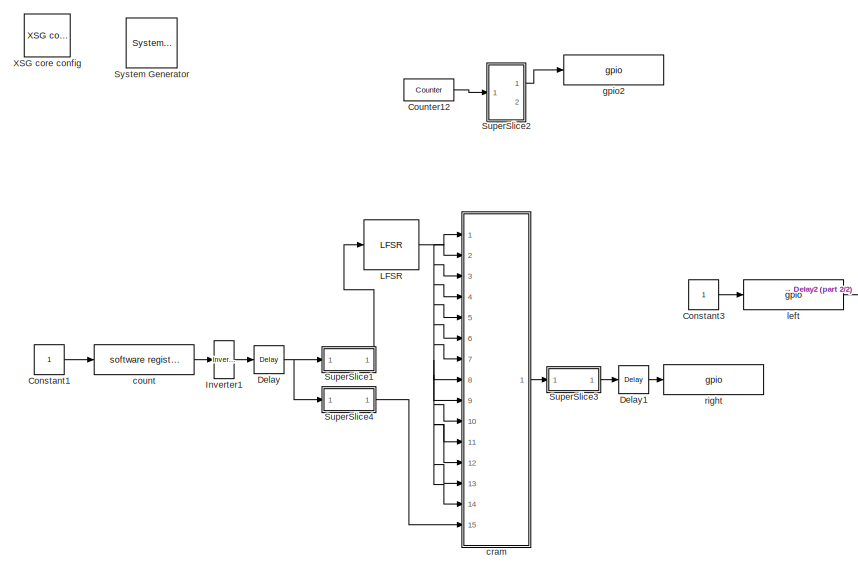
[diagram: root canvas - part 1/2, left side, full height]
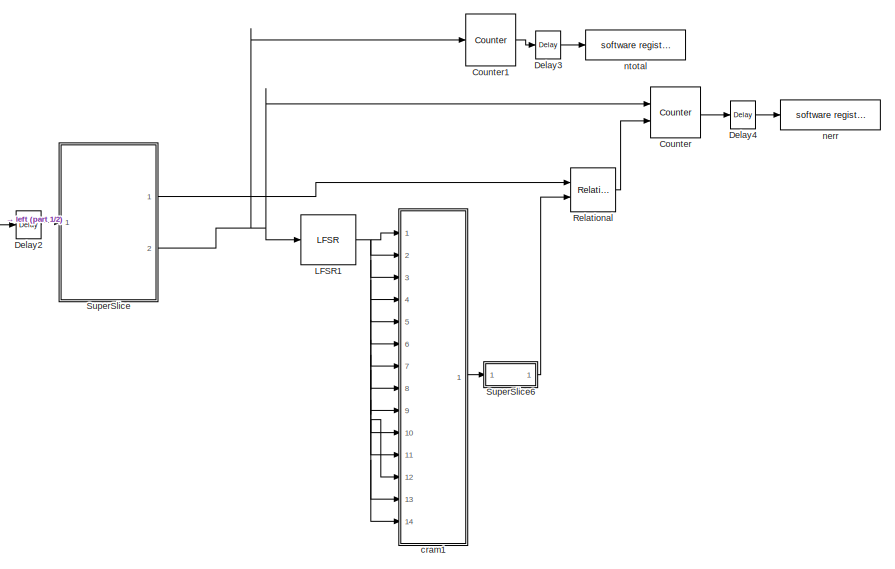
[diagram: root canvas - part 2/2, right side, full height]
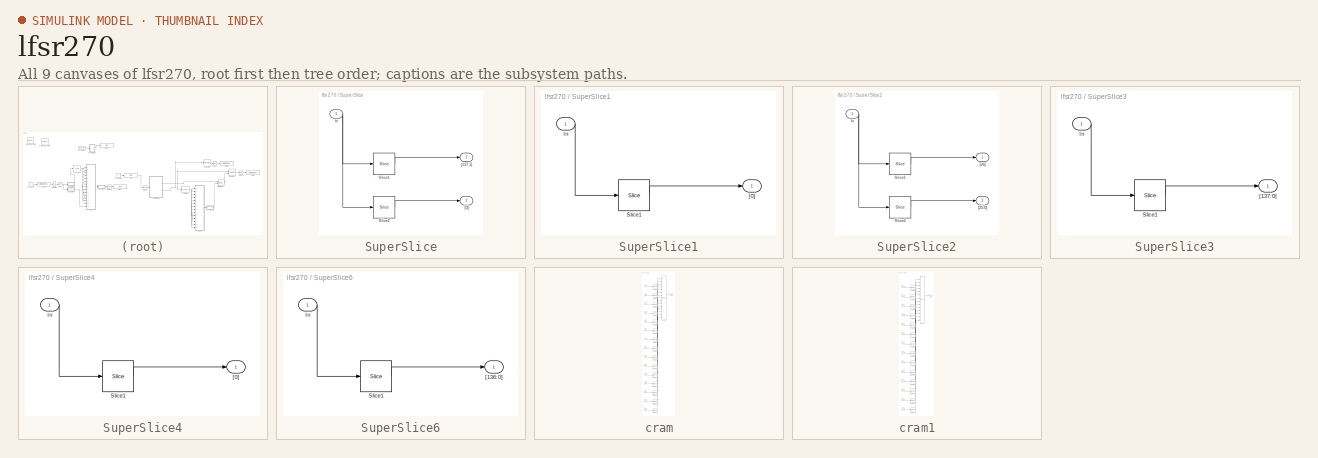
[diagram: thumbnail index - all 9 canvases of the model, root first then tree order]
MODEL lfsr270
KIND model
BLOCK [Reference]  System Generator  REF=xbsIndex_r3/ System Generator
  AttributesFormatString = System\\nGenerator
  Ports = []
  ShowPortLabels = on
  SourceBlock = xbsIndex_r3/ System Generator
  SourceType = Xilinx System Generator
  Tag = genX
  UserData = DataTag0
  UserDataPersistent = on
  core_generation = According to Block Masks
  dbl_ovrd = According to Block Masks
  deprecated_control = off
  directory = ./lfsr270/sysgen
  eval_field = 0
  incr_netlist = off
  package = ff1704
  part = xc2vp70
  run_coregen = off
  simulink_period = 1
  speed = -7
  synthesis_tool = XST
  sysclk_period = 3.9063
  testbench = off
  trim_vbits = Everywhere in SubSystem
  xilinxfamily = Virtex2P
BLOCK [Constant] Constant1
BLOCK [Constant] Constant3
BLOCK [Reference] Counter  REF=xbsIndex_r3/Counter
  Ports = [2, 1]
  SourceBlock = xbsIndex_r3/Counter
  SourceType = Xilinx Counter Block
  arith_type = Unsigned
  bin_pt = 0
  cnt_by_val = 1
  cnt_to = Inf
  cnt_type = Free Running
  dbl_ovrd = off
  en = on
  explicit_period = off
  gen_core = off
  load_pin = off
  n_bits = 32
  operation = Up
  period = 1
  rst = on
  show_param = on
  start_count = 0
  use_rpm = on
  xl_area = [0, 0, 0, 0, 0, 0, 0]
  xl_use_area = off
BLOCK [Reference] Counter1  REF=xbsIndex_r3/Counter
  Ports = [1, 1]
  SourceBlock = xbsIndex_r3/Counter
  SourceType = Xilinx Counter Block
  arith_type = Unsigned
  bin_pt = 0
  cnt_by_val = 1
  cnt_to = Inf
  cnt_type = Free Running
  dbl_ovrd = off
  en = off
  explicit_period = off
  gen_core = off
  load_pin = off
  n_bits = 32
  operation = Up
  period = 1
  rst = on
  show_param = on
  start_count = 0
  use_rpm = on
  xl_area = [0, 0, 0, 0, 0, 0, 0]
  xl_use_area = off
BLOCK [Reference] Counter12  REF=xbsIndex_r3/Counter
  Ports = [0, 1]
  SourceBlock = xbsIndex_r3/Counter
  SourceType = Xilinx Counter Block
  arith_type = Unsigned
  bin_pt = 0
  cnt_by_val = 1
  cnt_to = Inf
  cnt_type = Free Running
  dbl_ovrd = off
  en = off
  explicit_period = off
  gen_core = off
  load_pin = off
  n_bits = 27
  operation = Up
  period = 1
  rst = off
  show_param = off
  start_count = 0
  use_rpm = on
  xl_area = [0, 0, 0, 0, 0, 0, 0]
  xl_use_area = off
BLOCK [Reference] Delay  REF=xbsIndex_r3/Delay
  Ports = [1, 1]
  SourceBlock = xbsIndex_r3/Delay
  SourceType = Xilinx Delay Block
  accept_only_valid = off
  dbl_ovrd = off
  en = off
  explicit_period = off
  init_zero = on
  latency = 1
  period = 1
  reg_retiming = on
  show_param = off
  xl_area = [0, 0, 0, 0, 0, 0, 0]
  xl_use_area = off
BLOCK [Reference] Delay1  REF=xbsIndex_r3/Delay
  Ports = [1, 1]
  SourceBlock = xbsIndex_r3/Delay
  SourceType = Xilinx Delay Block
  accept_only_valid = off
  dbl_ovrd = off
  en = off
  explicit_period = off
  init_zero = on
  latency = 2
  period = 1
  reg_retiming = on
  show_param = off
  xl_area = [0, 0, 0, 0, 0, 0, 0]
  xl_use_area = off
BLOCK [Reference] Delay2  REF=xbsIndex_r3/Delay
  Ports = [1, 1]
  SourceBlock = xbsIndex_r3/Delay
  SourceType = Xilinx Delay Block
  accept_only_valid = off
  dbl_ovrd = off
  en = off
  explicit_period = off
  init_zero = on
  latency = 2
  period = 1
  reg_retiming = on
  show_param = off
  xl_area = [0, 0, 0, 0, 0, 0, 0]
  xl_use_area = off
BLOCK [Reference] Delay3  REF=xbsIndex_r3/Delay
  Ports = [1, 1]
  SourceBlock = xbsIndex_r3/Delay
  SourceType = Xilinx Delay Block
  accept_only_valid = off
  dbl_ovrd = off
  en = off
  explicit_period = off
  init_zero = on
  latency = 2
  period = 1
  reg_retiming = on
  show_param = off
  xl_area = [0, 0, 0, 0, 0, 0, 0]
  xl_use_area = off
BLOCK [Reference] Delay4  REF=xbsIndex_r3/Delay
  Ports = [1, 1]
  SourceBlock = xbsIndex_r3/Delay
  SourceType = Xilinx Delay Block
  accept_only_valid = off
  dbl_ovrd = off
  en = off
  explicit_period = off
  init_zero = on
  latency = 2
  period = 1
  reg_retiming = on
  show_param = off
  xl_area = [0, 0, 0, 0, 0, 0, 0]
  xl_use_area = off
BLOCK [Reference] Inverter1  REF=xbsIndex_r3/Inverter
  Ports = [1, 1]
  SourceBlock = xbsIndex_r3/Inverter
  SourceType = Xilinx Inverter
  dbl_ovrd = off
  en = off
  explicit_period = off
  latency = 0
  period = 1
  show_param = off
  xl_area = [0, 0, 0, 0, 0, 0, 0]
  xl_use_area = off
BLOCK [Reference] LFSR  REF=xbsIndex_r3/LFSR
  Ports = [1, 1]
  SourceBlock = xbsIndex_r3/LFSR
  SourceType = Xilinx Linear Feedback Shift Register
  arith_type = Unsigned
  bin_pt = 0
  dbl_ovrd = off
  en = off
  explicit_period = on
  gate_type = XOR
  gen_core = off
  input_type = off
  lfsr_type = Fibonacci
  n_bits = 10
  output_type = on
  period = 1
  polynomial = '9'
  reloadable_seed = off
  rst = on
  rst_value = '3F'
  show_param = on
  useSRL16s = off
  use_rpm = on
  xl_area = [0, 0, 0, 0, 0, 0, 0]
  xl_use_area = off
BLOCK [Reference] LFSR1  REF=xbsIndex_r3/LFSR
  Ports = [1, 1]
  SourceBlock = xbsIndex_r3/LFSR
  SourceType = Xilinx Linear Feedback Shift Register
  arith_type = Unsigned
  bin_pt = 0
  dbl_ovrd = off
  en = off
  explicit_period = on
  gate_type = XOR
  gen_core = off
  input_type = off
  lfsr_type = Fibonacci
  n_bits = 10
  output_type = on
  period = 1
  polynomial = '9'
  reloadable_seed = off
  rst = on
  rst_value = '3F'
  show_param = on
  useSRL16s = off
  use_rpm = on
  xl_area = [0, 0, 0, 0, 0, 0, 0]
  xl_use_area = off
BLOCK [Reference] Relational  REF=xbsIndex_r3/Relational
  Ports = [2, 1]
  SourceBlock = xbsIndex_r3/Relational
  SourceType = Xilinx Relational Block
  dbl_ovrd = off
  en = off
  explicit_period = off
  latency = 8
  mode = a!=b
  period = 1
  show_param = on
  xl_area = [0, 0, 0, 0, 0, 0, 0]
  xl_use_area = off
BLOCK [SubSystem] SuperSlice
  AncestorBlock = gavrt_library/SuperSlice
  MaskDescription = Slices the input word into consecutive outputs of arbitrary width.\nSlice pattern should be a vector with each entry representing the width of that particular slice. The first entry is the MSB slice and the last is the LSB slice.\nIf a slice is given width -1, that slice will have a boolean output.\nEx: -1*ones(1,32)  -- Slice a 32 bit word into seperate boolean flags\n[16, 8, -1*ones(1,8)] -- Sli...<+71ch>  <repeated x6 — deduplicated; at blocks: SuperSlice, SuperSlice1, SuperSlice2, SuperSlice3, SuperSlice4, SuperSlice6>
  MaskEnableString = on
  MaskIconFrame = on
  MaskIconOpaque = on
  MaskIconRotate = none
  MaskIconUnits = autoscale
  MaskInitialization = superslice_init(gcb, 'slices', slices);
  MaskPromptString = Slice pattern
  MaskStyleString = edit
  MaskToolTipString = on
  MaskTunableValueString = off
  MaskType = superslice
  MaskValueString = [137,-1]
  MaskVariables = slices=&1;
  MaskVisibilityString = on
  MinAlgLoopOccurrences = off
  Ports = [1, 2]
  RTWSystemCode = Auto
  TreatAsAtomicUnit = off
  UserData = DataTag1
  UserDataPersistent = on
BLOCK [Inport] SuperSlice/In
  IconDisplay = Port number
  LatchInput = off
  Port = 1
BLOCK [Reference] SuperSlice/Slice1  REF=xbsIndex_r3/Slice
  Ports = [1, 1]
  SourceBlock = xbsIndex_r3/Slice
  SourceType = Xilinx Slice Block
  base0 = LSB of Input
  base1 = MSB of Input
  bit0 = 1
  bit1 = -3
  boolean_output = off
  dbl_ovrd = off
  explicit_period = off
  mode = Lower Bit Location + Width
  nbits = 137
  period = 1
BLOCK [Reference] SuperSlice/Slice2  REF=xbsIndex_r3/Slice
  Ports = [1, 1]
  SourceBlock = xbsIndex_r3/Slice
  SourceType = Xilinx Slice Block
  base0 = LSB of Input
  base1 = MSB of Input
  bit0 = 0
  bit1 = -2
  boolean_output = on
  dbl_ovrd = off
  explicit_period = off
  mode = Lower Bit Location + Width
  nbits = 1
  period = 1
BLOCK [Outport] SuperSlice/[0]
  BusOutputAsStruct = off
  IconDisplay = Port number
  Port = 2
BLOCK [Outport] SuperSlice/[137:1]
  BusOutputAsStruct = off
  IconDisplay = Port number
BLOCK [SubSystem] SuperSlice1
  AncestorBlock = gavrt_library/SuperSlice
  MaskEnableString = on
  MaskIconFrame = on
  MaskIconOpaque = on
  MaskIconRotate = none
  MaskIconUnits = autoscale
  MaskInitialization = superslice_init(gcb, 'slices', slices);
  MaskPromptString = Slice pattern
  MaskStyleString = edit
  MaskToolTipString = on
  MaskTunableValueString = off
  MaskType = superslice
  MaskValueString = -1
  MaskVariables = slices=&1;
  MaskVisibilityString = on
  MinAlgLoopOccurrences = off
  Ports = [1, 1]
  RTWSystemCode = Auto
  TreatAsAtomicUnit = off
  UserData = DataTag2
  UserDataPersistent = on
BLOCK [Inport] SuperSlice1/In
  IconDisplay = Port number
  LatchInput = off
  Port = 1
BLOCK [Reference] SuperSlice1/Slice1  REF=xbsIndex_r3/Slice
  Ports = [1, 1]
  SourceBlock = xbsIndex_r3/Slice
  SourceType = Xilinx Slice Block
  base0 = LSB of Input
  base1 = MSB of Input
  bit0 = 0
  bit1 = -3
  boolean_output = on
  dbl_ovrd = off
  explicit_period = off
  mode = Lower Bit Location + Width
  nbits = 1
  period = 1
BLOCK [Outport] SuperSlice1/[0]
  BusOutputAsStruct = off
  IconDisplay = Port number
BLOCK [SubSystem] SuperSlice2
  AncestorBlock = gavrt_library/SuperSlice
  MaskEnableString = on
  MaskIconFrame = on
  MaskIconOpaque = on
  MaskIconRotate = none
  MaskIconUnits = autoscale
  MaskInitialization = superslice_init(gcb, 'slices', slices);
  MaskPromptString = Slice pattern
  MaskStyleString = edit
  MaskToolTipString = on
  MaskTunableValueString = off
  MaskType = superslice
  MaskValueString = [-1 26]
  MaskVariables = slices=&1;
  MaskVisibilityString = on
  MinAlgLoopOccurrences = off
  Ports = [1, 2]
  RTWSystemCode = Auto
  TreatAsAtomicUnit = off
  UserData = DataTag3
  UserDataPersistent = on
BLOCK [Inport] SuperSlice2/In
  IconDisplay = Port number
  LatchInput = off
  Port = 1
BLOCK [Reference] SuperSlice2/Slice1  REF=xbsIndex_r3/Slice
  Ports = [1, 1]
  SourceBlock = xbsIndex_r3/Slice
  SourceType = Xilinx Slice Block
  base0 = LSB of Input
  base1 = MSB of Input
  bit0 = 26
  bit1 = -3
  boolean_output = on
  dbl_ovrd = off
  explicit_period = off
  mode = Lower Bit Location + Width
  nbits = 1
  period = 1
BLOCK [Reference] SuperSlice2/Slice2  REF=xbsIndex_r3/Slice
  Ports = [1, 1]
  SourceBlock = xbsIndex_r3/Slice
  SourceType = Xilinx Slice Block
  base0 = LSB of Input
  base1 = MSB of Input
  bit0 = 0
  bit1 = 0
  boolean_output = off
  dbl_ovrd = off
  explicit_period = off
  mode = Lower Bit Location + Width
  nbits = 26
  period = 1
BLOCK [Outport] SuperSlice2/[25:0]
  BusOutputAsStruct = off
  IconDisplay = Port number
  Port = 2
BLOCK [Outport] SuperSlice2/[26]
  BusOutputAsStruct = off
  IconDisplay = Port number
BLOCK [SubSystem] SuperSlice3
  AncestorBlock = gavrt_library/SuperSlice
  MaskEnableString = on
  MaskIconFrame = on
  MaskIconOpaque = on
  MaskIconRotate = none
  MaskIconUnits = autoscale
  MaskInitialization = superslice_init(gcb, 'slices', slices);
  MaskPromptString = Slice pattern
  MaskStyleString = edit
  MaskToolTipString = on
  MaskTunableValueString = off
  MaskType = superslice
  MaskValueString = 138
  MaskVariables = slices=&1;
  MaskVisibilityString = on
  MinAlgLoopOccurrences = off
  Ports = [1, 1]
  RTWSystemCode = Auto
  TreatAsAtomicUnit = off
  UserData = DataTag4
  UserDataPersistent = on
BLOCK [Inport] SuperSlice3/In
  IconDisplay = Port number
  LatchInput = off
  Port = 1
BLOCK [Reference] SuperSlice3/Slice1  REF=xbsIndex_r3/Slice
  Ports = [1, 1]
  SourceBlock = xbsIndex_r3/Slice
  SourceType = Xilinx Slice Block
  base0 = LSB of Input
  base1 = MSB of Input
  bit0 = 0
  bit1 = -3
  boolean_output = off
  dbl_ovrd = off
  explicit_period = off
  mode = Lower Bit Location + Width
  nbits = 138
  period = 1
BLOCK [Outport] SuperSlice3/[137:0]
  BusOutputAsStruct = off
  IconDisplay = Port number
BLOCK [SubSystem] SuperSlice4
  AncestorBlock = gavrt_library/SuperSlice
  MaskEnableString = on
  MaskIconFrame = on
  MaskIconOpaque = on
  MaskIconRotate = none
  MaskIconUnits = autoscale
  MaskInitialization = superslice_init(gcb, 'slices', slices);
  MaskPromptString = Slice pattern
  MaskStyleString = edit
  MaskToolTipString = on
  MaskTunableValueString = off
  MaskType = superslice
  MaskValueString = 1
  MaskVariables = slices=&1;
  MaskVisibilityString = on
  MinAlgLoopOccurrences = off
  Ports = [1, 1]
  RTWSystemCode = Auto
  TreatAsAtomicUnit = off
  UserData = DataTag5
  UserDataPersistent = on
BLOCK [Inport] SuperSlice4/In
  IconDisplay = Port number
  LatchInput = off
  Port = 1
BLOCK [Reference] SuperSlice4/Slice1  REF=xbsIndex_r3/Slice
  Ports = [1, 1]
  SourceBlock = xbsIndex_r3/Slice
  SourceType = Xilinx Slice Block
  base0 = LSB of Input
  base1 = MSB of Input
  bit0 = 0
  bit1 = -3
  boolean_output = off
  dbl_ovrd = off
  explicit_period = off
  mode = Lower Bit Location + Width
  nbits = 1
  period = 1
BLOCK [Outport] SuperSlice4/[0]
  BusOutputAsStruct = off
  IconDisplay = Port number
BLOCK [SubSystem] SuperSlice6
  AncestorBlock = gavrt_library/SuperSlice
  MaskEnableString = on
  MaskIconFrame = on
  MaskIconOpaque = on
  MaskIconRotate = none
  MaskIconUnits = autoscale
  MaskInitialization = superslice_init(gcb, 'slices', slices);
  MaskPromptString = Slice pattern
  MaskStyleString = edit
  MaskToolTipString = on
  MaskTunableValueString = off
  MaskType = superslice
  MaskValueString = 137
  MaskVariables = slices=&1;
  MaskVisibilityString = on
  MinAlgLoopOccurrences = off
  Ports = [1, 1]
  RTWSystemCode = Auto
  TreatAsAtomicUnit = off
  UserData = DataTag6
  UserDataPersistent = on
BLOCK [Inport] SuperSlice6/In
  IconDisplay = Port number
  LatchInput = off
  Port = 1
BLOCK [Reference] SuperSlice6/Slice1  REF=xbsIndex_r3/Slice
  Ports = [1, 1]
  SourceBlock = xbsIndex_r3/Slice
  SourceType = Xilinx Slice Block
  base0 = LSB of Input
  base1 = MSB of Input
  bit0 = 0
  bit1 = -3
  boolean_output = off
  dbl_ovrd = off
  explicit_period = off
  mode = Lower Bit Location + Width
  nbits = 137
  period = 1
BLOCK [Outport] SuperSlice6/[136:0]
  BusOutputAsStruct = off
  IconDisplay = Port number
BLOCK [Reference] XSG core config  REF=xps_library/XSG core config  (lib defined in mdl_00b5cec29cd0, mdl_02ab6ecaa3d1, +5 more)
  Ports = []
  ShowPortLabels = on
  SourceBlock = xps_library/XSG core config
  SourceType = xsg core config
  Tag = xps:xsg
  clk_rate = 256
  clk_src = sys_clk2x
  gpio_clk_bit_index = 0
  gpio_clk_io_group = iBOB:sma
  hw_sys = BEE2_usr
  ibob_linux = off
  mpc_type = powerpc405
  sample_period = 1
  synthesis_tool = XST
BLOCK [Reference] count  REF=xps_library/software register  (lib defined in mdl_00b5cec29cd0, mdl_02ab6ecaa3d1, +5 more)
  Ports = [1, 1]
  ShowPortLabels = on
  SourceBlock = xps_library/software register
  Tag = xps:sw_reg
  arith_type = Unsigned
  bin_pt = 0
  bitwidth = 32
  gw_name = lfsr270_count_user_data_out
  io_dir = From Processor
  sample_period = 1
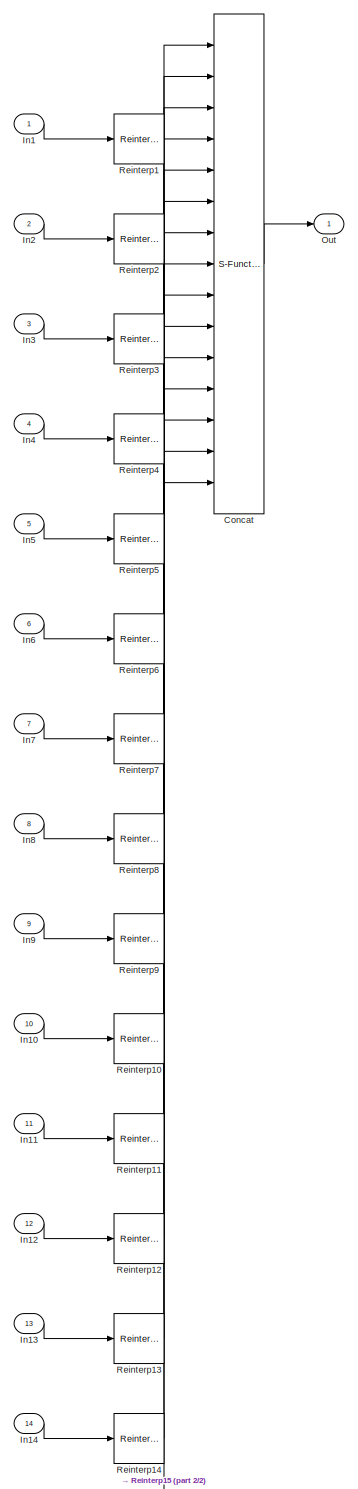
[diagram: cram - part 1/2, most of the canvas]
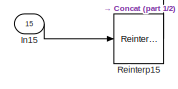
[diagram: cram - part 2/2, bottom left region]
BLOCK [SubSystem] cram
  AncestorBlock = gavrt_library/cram
  MaskDescription = Concatenates inputs together after forcing binary point to zero.
  MaskEnableString = on
  MaskIconFrame = on
  MaskIconOpaque = on
  MaskIconRotate = none
  MaskIconUnits = autoscale
  MaskInitialization = cram_init(gcb, ...\n    'num_slice', num_slice);
  MaskPromptString = Number of slices
  MaskSelfModifiable = on
  MaskStyleString = edit
  MaskToolTipString = on
  MaskTunableValueString = on
  MaskType = cram
  MaskValueString = 15
  MaskVariables = num_slice=@1;
  MaskVisibilityString = on
  MinAlgLoopOccurrences = off
  Ports = [15, 1]
  RTWSystemCode = Auto
  TreatAsAtomicUnit = off
  UserData = DataTag7
  UserDataPersistent = on
BLOCK [S-Function] cram/Concat
  AncestorBlock = xbsIndex_r3/Concat
  FunctionName = xlconcat
  MaskCallbackString = |xlMagicCallback||
  MaskDescription = Concatenates two or more inputs.  Inputs must be unsigned with binary point at zero.
  MaskDisplay = patch([0 iWidth iWidth 0],[0 0 iHeight iHeight] , bg);\npatch(logoX,logoY, fg);\nport_label('input',1,'hi');\nport_label('input',num_inputs+1,'lo');\nport_label('output',1,'cat');\n;plot([0 0 iWidth iWidth 0], [0 iHeight iHeight 0 0]);\n
  MaskEnableString = on,on,on,on
  MaskHelp = eval('xlWeb(xlhtmldoclink(''Concat''))');
  MaskIconFrame = off
  MaskIconOpaque = off
  MaskIconRotate = none
  MaskIconUnits = autoscale
  MaskInitialization = [designRoot, family, part, speed, package, simulinkPeriod, sysclkPeriod, dbl_ovrd, trimVbit] = xlSysgenSettings(gcb,1,1);\n[bg,fg] = xlcmap('XBlock',dbl_ovrd);\niPos = get_param(gcb,'Position');\niWidth=iPos(3)-iPos(1); iHeight=iPos(4)-iPos(2);\niCx=iWidth/2;\niCy=iHeight/2;\n[logoX, logoY] = xlogo(iPos);\n\n\n\n\n% one time added for param list\nnumInputs = num_inputs + 1;\nprecision0 = 1;\nlaten...<+154ch>
  MaskPromptString = Number of Inputs|Use Explicit Sample Period|Sample Period  (use -1 to inherit first known input period)|Override with Doubles
  MaskSelfModifiable = on
  MaskStyleString = popup(2|3|4|5|6|7|8|9|10|11|12|13|14|15|16),checkbox,edit,checkbox
  MaskTabNameString = ,,,
  MaskToolTipString = on,on,on,on
  MaskTunableValueString = off,off,off,off
  MaskType = Xilinx Bus Concatenator
  MaskValueString = 15|off|1|off
  MaskVarAliasString = ,,,
  MaskVariables = num_inputs=@1;explicit_period=@2;period=@3;dbl_ovrd=@4;
  MaskVisibilityString = on,on,off,on
  Parameters = sfcn_mwsv__
  Ports = [15, 1]
BLOCK [Inport] cram/In1
  IconDisplay = Port number
  LatchInput = off
  Port = 1
BLOCK [Inport] cram/In10
  IconDisplay = Port number
  LatchInput = off
  Port = 10
BLOCK [Inport] cram/In11
  IconDisplay = Port number
  LatchInput = off
  Port = 11
BLOCK [Inport] cram/In12
  IconDisplay = Port number
  LatchInput = off
  Port = 12
BLOCK [Inport] cram/In13
  IconDisplay = Port number
  LatchInput = off
  Port = 13
BLOCK [Inport] cram/In14
  IconDisplay = Port number
  LatchInput = off
  Port = 14
BLOCK [Inport] cram/In15
  IconDisplay = Port number
  LatchInput = off
  Port = 15
BLOCK [Inport] cram/In2
  IconDisplay = Port number
  LatchInput = off
  Port = 2
BLOCK [Inport] cram/In3
  IconDisplay = Port number
  LatchInput = off
  Port = 3
BLOCK [Inport] cram/In4
  IconDisplay = Port number
  LatchInput = off
  Port = 4
BLOCK [Inport] cram/In5
  IconDisplay = Port number
  LatchInput = off
  Port = 5
BLOCK [Inport] cram/In6
  IconDisplay = Port number
  LatchInput = off
  Port = 6
BLOCK [Inport] cram/In7
  IconDisplay = Port number
  LatchInput = off
  Port = 7
BLOCK [Inport] cram/In8
  IconDisplay = Port number
  LatchInput = off
  Port = 8
BLOCK [Inport] cram/In9
  IconDisplay = Port number
  LatchInput = off
  Port = 9
BLOCK [Outport] cram/Out
  BusOutputAsStruct = off
  IconDisplay = Port number
BLOCK [Reference] cram/Reinterp1  REF=xbsIndex_r3/Reinterpret
  Ports = [1, 1]
  SourceBlock = xbsIndex_r3/Reinterpret
  SourceType = Xilinx Type Reinterpreting Block
  arith_type = Unsigned
  bin_pt = 0
  force_arith_type = on
  force_bin_pt = on
  force_valid = on
BLOCK [Reference] cram/Reinterp10  REF=xbsIndex_r3/Reinterpret
  Ports = [1, 1]
  SourceBlock = xbsIndex_r3/Reinterpret
  SourceType = Xilinx Type Reinterpreting Block
  arith_type = Unsigned
  bin_pt = 0
  force_arith_type = on
  force_bin_pt = on
  force_valid = on
BLOCK [Reference] cram/Reinterp11  REF=xbsIndex_r3/Reinterpret
  Ports = [1, 1]
  SourceBlock = xbsIndex_r3/Reinterpret
  SourceType = Xilinx Type Reinterpreting Block
  arith_type = Unsigned
  bin_pt = 0
  force_arith_type = on
  force_bin_pt = on
  force_valid = on
BLOCK [Reference] cram/Reinterp12  REF=xbsIndex_r3/Reinterpret
  Ports = [1, 1]
  SourceBlock = xbsIndex_r3/Reinterpret
  SourceType = Xilinx Type Reinterpreting Block
  arith_type = Unsigned
  bin_pt = 0
  force_arith_type = on
  force_bin_pt = on
  force_valid = on
BLOCK [Reference] cram/Reinterp13  REF=xbsIndex_r3/Reinterpret
  Ports = [1, 1]
  SourceBlock = xbsIndex_r3/Reinterpret
  SourceType = Xilinx Type Reinterpreting Block
  arith_type = Unsigned
  bin_pt = 0
  force_arith_type = on
  force_bin_pt = on
  force_valid = on
BLOCK [Reference] cram/Reinterp14  REF=xbsIndex_r3/Reinterpret
  Ports = [1, 1]
  SourceBlock = xbsIndex_r3/Reinterpret
  SourceType = Xilinx Type Reinterpreting Block
  arith_type = Unsigned
  bin_pt = 0
  force_arith_type = on
  force_bin_pt = on
  force_valid = on
BLOCK [Reference] cram/Reinterp15  REF=xbsIndex_r3/Reinterpret
  Ports = [1, 1]
  SourceBlock = xbsIndex_r3/Reinterpret
  SourceType = Xilinx Type Reinterpreting Block
  arith_type = Unsigned
  bin_pt = 0
  force_arith_type = on
  force_bin_pt = on
  force_valid = on
BLOCK [Reference] cram/Reinterp2  REF=xbsIndex_r3/Reinterpret
  Ports = [1, 1]
  SourceBlock = xbsIndex_r3/Reinterpret
  SourceType = Xilinx Type Reinterpreting Block
  arith_type = Unsigned
  bin_pt = 0
  force_arith_type = on
  force_bin_pt = on
  force_valid = on
BLOCK [Reference] cram/Reinterp3  REF=xbsIndex_r3/Reinterpret
  Ports = [1, 1]
  SourceBlock = xbsIndex_r3/Reinterpret
  SourceType = Xilinx Type Reinterpreting Block
  arith_type = Unsigned
  bin_pt = 0
  force_arith_type = on
  force_bin_pt = on
  force_valid = on
BLOCK [Reference] cram/Reinterp4  REF=xbsIndex_r3/Reinterpret
  Ports = [1, 1]
  SourceBlock = xbsIndex_r3/Reinterpret
  SourceType = Xilinx Type Reinterpreting Block
  arith_type = Unsigned
  bin_pt = 0
  force_arith_type = on
  force_bin_pt = on
  force_valid = on
BLOCK [Reference] cram/Reinterp5  REF=xbsIndex_r3/Reinterpret
  Ports = [1, 1]
  SourceBlock = xbsIndex_r3/Reinterpret
  SourceType = Xilinx Type Reinterpreting Block
  arith_type = Unsigned
  bin_pt = 0
  force_arith_type = on
  force_bin_pt = on
  force_valid = on
BLOCK [Reference] cram/Reinterp6  REF=xbsIndex_r3/Reinterpret
  Ports = [1, 1]
  SourceBlock = xbsIndex_r3/Reinterpret
  SourceType = Xilinx Type Reinterpreting Block
  arith_type = Unsigned
  bin_pt = 0
  force_arith_type = on
  force_bin_pt = on
  force_valid = on
BLOCK [Reference] cram/Reinterp7  REF=xbsIndex_r3/Reinterpret
  Ports = [1, 1]
  SourceBlock = xbsIndex_r3/Reinterpret
  SourceType = Xilinx Type Reinterpreting Block
  arith_type = Unsigned
  bin_pt = 0
  force_arith_type = on
  force_bin_pt = on
  force_valid = on
BLOCK [Reference] cram/Reinterp8  REF=xbsIndex_r3/Reinterpret
  Ports = [1, 1]
  SourceBlock = xbsIndex_r3/Reinterpret
  SourceType = Xilinx Type Reinterpreting Block
  arith_type = Unsigned
  bin_pt = 0
  force_arith_type = on
  force_bin_pt = on
  force_valid = on
BLOCK [Reference] cram/Reinterp9  REF=xbsIndex_r3/Reinterpret
  Ports = [1, 1]
  SourceBlock = xbsIndex_r3/Reinterpret
  SourceType = Xilinx Type Reinterpreting Block
  arith_type = Unsigned
  bin_pt = 0
  force_arith_type = on
  force_bin_pt = on
  force_valid = on
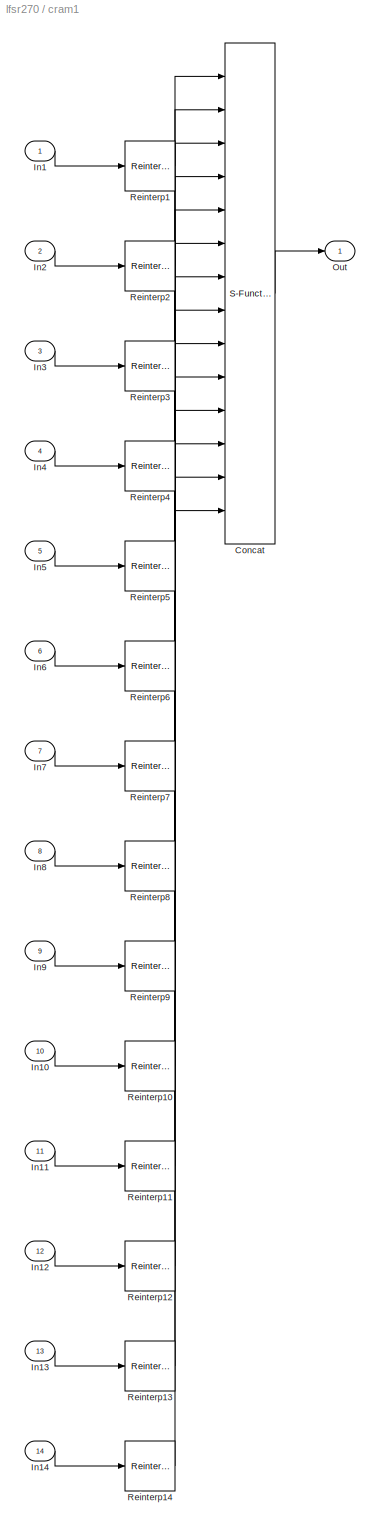
BLOCK [SubSystem] cram1
  AncestorBlock = gavrt_library/cram
  MaskDescription = Concatenates inputs together after forcing binary point to zero.
  MaskEnableString = on
  MaskIconFrame = on
  MaskIconOpaque = on
  MaskIconRotate = none
  MaskIconUnits = autoscale
  MaskInitialization = cram_init(gcb, ...\n    'num_slice', num_slice);
  MaskPromptString = Number of slices
  MaskSelfModifiable = on
  MaskStyleString = edit
  MaskToolTipString = on
  MaskTunableValueString = on
  MaskType = cram
  MaskValueString = 14
  MaskVariables = num_slice=@1;
  MaskVisibilityString = on
  MinAlgLoopOccurrences = off
  Ports = [14, 1]
  RTWSystemCode = Auto
  TreatAsAtomicUnit = off
  UserData = DataTag8
  UserDataPersistent = on
BLOCK [S-Function] cram1/Concat
  AncestorBlock = xbsIndex_r3/Concat
  FunctionName = xlconcat
  MaskCallbackString = |xlMagicCallback||
  MaskDescription = Concatenates two or more inputs.  Inputs must be unsigned with binary point at zero.
  MaskDisplay = patch([0 iWidth iWidth 0],[0 0 iHeight iHeight] , bg);\npatch(logoX,logoY, fg);\nport_label('input',1,'hi');\nport_label('input',num_inputs+1,'lo');\nport_label('output',1,'cat');\n;plot([0 0 iWidth iWidth 0], [0 iHeight iHeight 0 0]);\n
  MaskEnableString = on,on,on,on
  MaskHelp = eval('xlWeb(xlhtmldoclink(''Concat''))');
  MaskIconFrame = off
  MaskIconOpaque = off
  MaskIconRotate = none
  MaskIconUnits = autoscale
  MaskInitialization = [designRoot, family, part, speed, package, simulinkPeriod, sysclkPeriod, dbl_ovrd, trimVbit] = xlSysgenSettings(gcb,1,1);\n[bg,fg] = xlcmap('XBlock',dbl_ovrd);\niPos = get_param(gcb,'Position');\niWidth=iPos(3)-iPos(1); iHeight=iPos(4)-iPos(2);\niCx=iWidth/2;\niCy=iHeight/2;\n[logoX, logoY] = xlogo(iPos);\n\n\n\n\n% one time added for param list\nnumInputs = num_inputs + 1;\nprecision0 = 1;\nlaten...<+154ch>
  MaskPromptString = Number of Inputs|Use Explicit Sample Period|Sample Period  (use -1 to inherit first known input period)|Override with Doubles
  MaskSelfModifiable = on
  MaskStyleString = popup(2|3|4|5|6|7|8|9|10|11|12|13|14|15|16),checkbox,edit,checkbox
  MaskTabNameString = ,,,
  MaskToolTipString = on,on,on,on
  MaskTunableValueString = off,off,off,off
  MaskType = Xilinx Bus Concatenator
  MaskValueString = 14|off|1|off
  MaskVarAliasString = ,,,
  MaskVariables = num_inputs=@1;explicit_period=@2;period=@3;dbl_ovrd=@4;
  MaskVisibilityString = on,on,off,on
  Parameters = sfcn_mwsv__
  Ports = [14, 1]
BLOCK [Inport] cram1/In1
  IconDisplay = Port number
  LatchInput = off
  Port = 1
BLOCK [Inport] cram1/In10
  IconDisplay = Port number
  LatchInput = off
  Port = 10
BLOCK [Inport] cram1/In11
  IconDisplay = Port number
  LatchInput = off
  Port = 11
BLOCK [Inport] cram1/In12
  IconDisplay = Port number
  LatchInput = off
  Port = 12
BLOCK [Inport] cram1/In13
  IconDisplay = Port number
  LatchInput = off
  Port = 13
BLOCK [Inport] cram1/In14
  IconDisplay = Port number
  LatchInput = off
  Port = 14
BLOCK [Inport] cram1/In2
  IconDisplay = Port number
  LatchInput = off
  Port = 2
BLOCK [Inport] cram1/In3
  IconDisplay = Port number
  LatchInput = off
  Port = 3
BLOCK [Inport] cram1/In4
  IconDisplay = Port number
  LatchInput = off
  Port = 4
BLOCK [Inport] cram1/In5
  IconDisplay = Port number
  LatchInput = off
  Port = 5
BLOCK [Inport] cram1/In6
  IconDisplay = Port number
  LatchInput = off
  Port = 6
BLOCK [Inport] cram1/In7
  IconDisplay = Port number
  LatchInput = off
  Port = 7
BLOCK [Inport] cram1/In8
  IconDisplay = Port number
  LatchInput = off
  Port = 8
BLOCK [Inport] cram1/In9
  IconDisplay = Port number
  LatchInput = off
  Port = 9
BLOCK [Outport] cram1/Out
  BusOutputAsStruct = off
  IconDisplay = Port number
BLOCK [Reference] cram1/Reinterp1  REF=xbsIndex_r3/Reinterpret
  Ports = [1, 1]
  SourceBlock = xbsIndex_r3/Reinterpret
  SourceType = Xilinx Type Reinterpreting Block
  arith_type = Unsigned
  bin_pt = 0
  force_arith_type = on
  force_bin_pt = on
  force_valid = on
BLOCK [Reference] cram1/Reinterp10  REF=xbsIndex_r3/Reinterpret
  Ports = [1, 1]
  SourceBlock = xbsIndex_r3/Reinterpret
  SourceType = Xilinx Type Reinterpreting Block
  arith_type = Unsigned
  bin_pt = 0
  force_arith_type = on
  force_bin_pt = on
  force_valid = on
BLOCK [Reference] cram1/Reinterp11  REF=xbsIndex_r3/Reinterpret
  Ports = [1, 1]
  SourceBlock = xbsIndex_r3/Reinterpret
  SourceType = Xilinx Type Reinterpreting Block
  arith_type = Unsigned
  bin_pt = 0
  force_arith_type = on
  force_bin_pt = on
  force_valid = on
BLOCK [Reference] cram1/Reinterp12  REF=xbsIndex_r3/Reinterpret
  Ports = [1, 1]
  SourceBlock = xbsIndex_r3/Reinterpret
  SourceType = Xilinx Type Reinterpreting Block
  arith_type = Unsigned
  bin_pt = 0
  force_arith_type = on
  force_bin_pt = on
  force_valid = on
BLOCK [Reference] cram1/Reinterp13  REF=xbsIndex_r3/Reinterpret
  Ports = [1, 1]
  SourceBlock = xbsIndex_r3/Reinterpret
  SourceType = Xilinx Type Reinterpreting Block
  arith_type = Unsigned
  bin_pt = 0
  force_arith_type = on
  force_bin_pt = on
  force_valid = on
BLOCK [Reference] cram1/Reinterp14  REF=xbsIndex_r3/Reinterpret
  Ports = [1, 1]
  SourceBlock = xbsIndex_r3/Reinterpret
  SourceType = Xilinx Type Reinterpreting Block
  arith_type = Unsigned
  bin_pt = 0
  force_arith_type = on
  force_bin_pt = on
  force_valid = on
BLOCK [Reference] cram1/Reinterp2  REF=xbsIndex_r3/Reinterpret
  Ports = [1, 1]
  SourceBlock = xbsIndex_r3/Reinterpret
  SourceType = Xilinx Type Reinterpreting Block
  arith_type = Unsigned
  bin_pt = 0
  force_arith_type = on
  force_bin_pt = on
  force_valid = on
BLOCK [Reference] cram1/Reinterp3  REF=xbsIndex_r3/Reinterpret
  Ports = [1, 1]
  SourceBlock = xbsIndex_r3/Reinterpret
  SourceType = Xilinx Type Reinterpreting Block
  arith_type = Unsigned
  bin_pt = 0
  force_arith_type = on
  force_bin_pt = on
  force_valid = on
BLOCK [Reference] cram1/Reinterp4  REF=xbsIndex_r3/Reinterpret
  Ports = [1, 1]
  SourceBlock = xbsIndex_r3/Reinterpret
  SourceType = Xilinx Type Reinterpreting Block
  arith_type = Unsigned
  bin_pt = 0
  force_arith_type = on
  force_bin_pt = on
  force_valid = on
BLOCK [Reference] cram1/Reinterp5  REF=xbsIndex_r3/Reinterpret
  Ports = [1, 1]
  SourceBlock = xbsIndex_r3/Reinterpret
  SourceType = Xilinx Type Reinterpreting Block
  arith_type = Unsigned
  bin_pt = 0
  force_arith_type = on
  force_bin_pt = on
  force_valid = on
BLOCK [Reference] cram1/Reinterp6  REF=xbsIndex_r3/Reinterpret
  Ports = [1, 1]
  SourceBlock = xbsIndex_r3/Reinterpret
  SourceType = Xilinx Type Reinterpreting Block
  arith_type = Unsigned
  bin_pt = 0
  force_arith_type = on
  force_bin_pt = on
  force_valid = on
BLOCK [Reference] cram1/Reinterp7  REF=xbsIndex_r3/Reinterpret
  Ports = [1, 1]
  SourceBlock = xbsIndex_r3/Reinterpret
  SourceType = Xilinx Type Reinterpreting Block
  arith_type = Unsigned
  bin_pt = 0
  force_arith_type = on
  force_bin_pt = on
  force_valid = on
BLOCK [Reference] cram1/Reinterp8  REF=xbsIndex_r3/Reinterpret
  Ports = [1, 1]
  SourceBlock = xbsIndex_r3/Reinterpret
  SourceType = Xilinx Type Reinterpreting Block
  arith_type = Unsigned
  bin_pt = 0
  force_arith_type = on
  force_bin_pt = on
  force_valid = on
BLOCK [Reference] cram1/Reinterp9  REF=xbsIndex_r3/Reinterpret
  Ports = [1, 1]
  SourceBlock = xbsIndex_r3/Reinterpret
  SourceType = Xilinx Type Reinterpreting Block
  arith_type = Unsigned
  bin_pt = 0
  force_arith_type = on
  force_bin_pt = on
  force_valid = on
BLOCK [Reference] gpio2  REF=xps_library/gpio  (lib defined in mdl_00b5cec29cd0, mdl_02ab6ecaa3d1, +5 more)
  Ports = [1, 1]
  ShowPortLabels = on
  SourceBlock = xps_library/gpio
  SourceType = gpio
  Tag = xps:gpio
  arith_type = Boolean
  bin_pt = 0
  bit_index = 0
  bitwidth = 1
  io_dir = out
  io_group = BEE2_usr:led
  reg_clk_phase = 0
  reg_iob = on
  sample_period = 1
  termination = None
  use_ddr = off
  use_single_ended = off
BLOCK [Reference] left  REF=xps_library/gpio  (lib defined in mdl_00b5cec29cd0, mdl_02ab6ecaa3d1, +5 more)
  Ports = [1, 1]
  ShowPortLabels = on
  SourceBlock = xps_library/gpio
  SourceType = gpio
  Tag = xps:gpio
  arith_type = Unsigned
  bin_pt = 0
  bit_index = 0:137
  bitwidth = 138
  io_dir = in
  io_group = BEE2_usr:leftlink
  reg_clk_phase = 270
  reg_iob = on
  sample_period = 1
  termination = Pullup
  use_ddr = off
  use_single_ended = off
BLOCK [Reference] nerr  REF=xps_library/software register  (lib defined in mdl_00b5cec29cd0, mdl_02ab6ecaa3d1, +5 more)
  Ports = [1, 1]
  ShowPortLabels = on
  SourceBlock = xps_library/software register
  Tag = xps:sw_reg
  arith_type = Unsigned
  bin_pt = 0
  bitwidth = 32
  gw_name = lfsr270_nerr_user_data_in
  io_dir = To Processor
  sample_period = 1
BLOCK [Reference] ntotal  REF=xps_library/software register  (lib defined in mdl_00b5cec29cd0, mdl_02ab6ecaa3d1, +5 more)
  Ports = [1, 1]
  ShowPortLabels = on
  SourceBlock = xps_library/software register
  Tag = xps:sw_reg
  arith_type = Unsigned
  bin_pt = 0
  bitwidth = 32
  gw_name = lfsr270_ntotal_user_data_in
  io_dir = To Processor
  sample_period = 1
BLOCK [Reference] right  REF=xps_library/gpio  (lib defined in mdl_00b5cec29cd0, mdl_02ab6ecaa3d1, +5 more)
  Ports = [1, 1]
  ShowPortLabels = on
  SourceBlock = xps_library/gpio
  SourceType = gpio
  Tag = xps:gpio
  arith_type = Unsigned
  bin_pt = 0
  bit_index = 0:137
  bitwidth = 138
  io_dir = out
  io_group = BEE2_usr:rightlink
  reg_clk_phase = 0
  reg_iob = on
  sample_period = 1
  termination = None
  use_ddr = off
  use_single_ended = off
LINE Constant1:1 -> count:1
LINE Constant3:1 -> left:1
LINE Counter12:1 -> SuperSlice2:1
LINE Counter1:1 -> Delay3:1
LINE Counter:1 -> Delay4:1
LINE Delay1:1 -> right:1
LINE Delay2:1 -> SuperSlice:1
LINE Delay3:1 -> ntotal:1
LINE Delay4:1 -> nerr:1
NET Delay:1 -> SuperSlice1:1, SuperSlice4:1
LINE Inverter1:1 -> Delay:1
NET LFSR1:1 -> cram1:1, cram1:10, cram1:11, cram1:12, cram1:13, cram1:14, cram1:2, cram1:3, cram1:4, cram1:5, cram1:6, cram1:7, cram1:8, cram1:9
NET LFSR:1 -> cram:1, cram:10, cram:11, cram:12, cram:13, cram:14, cram:2, cram:3, cram:4, cram:5, cram:6, cram:7, cram:8, cram:9
LINE Relational:1 -> Counter:2
NET SuperSlice/In:1 -> SuperSlice/Slice1:1, SuperSlice/Slice2:1
LINE SuperSlice/Slice1:1 -> SuperSlice/[137:1]:1
LINE SuperSlice/Slice2:1 -> SuperSlice/[0]:1
LINE SuperSlice1/In:1 -> SuperSlice1/Slice1:1
LINE SuperSlice1/Slice1:1 -> SuperSlice1/[0]:1
LINE SuperSlice1:1 -> LFSR:1
NET SuperSlice2/In:1 -> SuperSlice2/Slice1:1, SuperSlice2/Slice2:1
LINE SuperSlice2/Slice1:1 -> SuperSlice2/[26]:1
LINE SuperSlice2/Slice2:1 -> SuperSlice2/[25:0]:1
LINE SuperSlice2:1 -> gpio2:1
LINE SuperSlice3/In:1 -> SuperSlice3/Slice1:1
LINE SuperSlice3/Slice1:1 -> SuperSlice3/[137:0]:1
LINE SuperSlice3:1 -> Delay1:1
LINE SuperSlice4/In:1 -> SuperSlice4/Slice1:1
LINE SuperSlice4/Slice1:1 -> SuperSlice4/[0]:1
LINE SuperSlice4:1 -> cram:15
LINE SuperSlice6/In:1 -> SuperSlice6/Slice1:1
LINE SuperSlice6/Slice1:1 -> SuperSlice6/[136:0]:1
LINE SuperSlice6:1 -> Relational:2
LINE SuperSlice:1 -> Relational:1
NET SuperSlice:2 -> Counter1:1, Counter:1, LFSR1:1
LINE count:1 -> Inverter1:1
LINE cram/Concat:1 -> cram/Out:1
LINE cram/In10:1 -> cram/Reinterp10:1
LINE cram/In11:1 -> cram/Reinterp11:1
LINE cram/In12:1 -> cram/Reinterp12:1
LINE cram/In13:1 -> cram/Reinterp13:1
LINE cram/In14:1 -> cram/Reinterp14:1
LINE cram/In15:1 -> cram/Reinterp15:1
LINE cram/In1:1 -> cram/Reinterp1:1
LINE cram/In2:1 -> cram/Reinterp2:1
LINE cram/In3:1 -> cram/Reinterp3:1
LINE cram/In4:1 -> cram/Reinterp4:1
LINE cram/In5:1 -> cram/Reinterp5:1
LINE cram/In6:1 -> cram/Reinterp6:1
LINE cram/In7:1 -> cram/Reinterp7:1
LINE cram/In8:1 -> cram/Reinterp8:1
LINE cram/In9:1 -> cram/Reinterp9:1
LINE cram/Reinterp10:1 -> cram/Concat:10
LINE cram/Reinterp11:1 -> cram/Concat:11
LINE cram/Reinterp12:1 -> cram/Concat:12
LINE cram/Reinterp13:1 -> cram/Concat:13
LINE cram/Reinterp14:1 -> cram/Concat:14
LINE cram/Reinterp15:1 -> cram/Concat:15
LINE cram/Reinterp1:1 -> cram/Concat:1
LINE cram/Reinterp2:1 -> cram/Concat:2
LINE cram/Reinterp3:1 -> cram/Concat:3
LINE cram/Reinterp4:1 -> cram/Concat:4
LINE cram/Reinterp5:1 -> cram/Concat:5
LINE cram/Reinterp6:1 -> cram/Concat:6
LINE cram/Reinterp7:1 -> cram/Concat:7
LINE cram/Reinterp8:1 -> cram/Concat:8
LINE cram/Reinterp9:1 -> cram/Concat:9
LINE cram1/Concat:1 -> cram1/Out:1
LINE cram1/In10:1 -> cram1/Reinterp10:1
LINE cram1/In11:1 -> cram1/Reinterp11:1
LINE cram1/In12:1 -> cram1/Reinterp12:1
LINE cram1/In13:1 -> cram1/Reinterp13:1
LINE cram1/In14:1 -> cram1/Reinterp14:1
LINE cram1/In1:1 -> cram1/Reinterp1:1
LINE cram1/In2:1 -> cram1/Reinterp2:1
LINE cram1/In3:1 -> cram1/Reinterp3:1
LINE cram1/In4:1 -> cram1/Reinterp4:1
LINE cram1/In5:1 -> cram1/Reinterp5:1
LINE cram1/In6:1 -> cram1/Reinterp6:1
LINE cram1/In7:1 -> cram1/Reinterp7:1
LINE cram1/In8:1 -> cram1/Reinterp8:1
LINE cram1/In9:1 -> cram1/Reinterp9:1
LINE cram1/Reinterp10:1 -> cram1/Concat:10
LINE cram1/Reinterp11:1 -> cram1/Concat:11
LINE cram1/Reinterp12:1 -> cram1/Concat:12
LINE cram1/Reinterp13:1 -> cram1/Concat:13
LINE cram1/Reinterp14:1 -> cram1/Concat:14
LINE cram1/Reinterp1:1 -> cram1/Concat:1
LINE cram1/Reinterp2:1 -> cram1/Concat:2
LINE cram1/Reinterp3:1 -> cram1/Concat:3
LINE cram1/Reinterp4:1 -> cram1/Concat:4
LINE cram1/Reinterp5:1 -> cram1/Concat:5
LINE cram1/Reinterp6:1 -> cram1/Concat:6
LINE cram1/Reinterp7:1 -> cram1/Concat:7
LINE cram1/Reinterp8:1 -> cram1/Concat:8
LINE cram1/Reinterp9:1 -> cram1/Concat:9
LINE cram1:1 -> SuperSlice6:1
LINE cram:1 -> SuperSlice3:1
LINE left:1 -> Delay2:1
note: NET lines group one-source signal fan-out (src -> all destinations, sorted); 1:1 wires keep LINE
